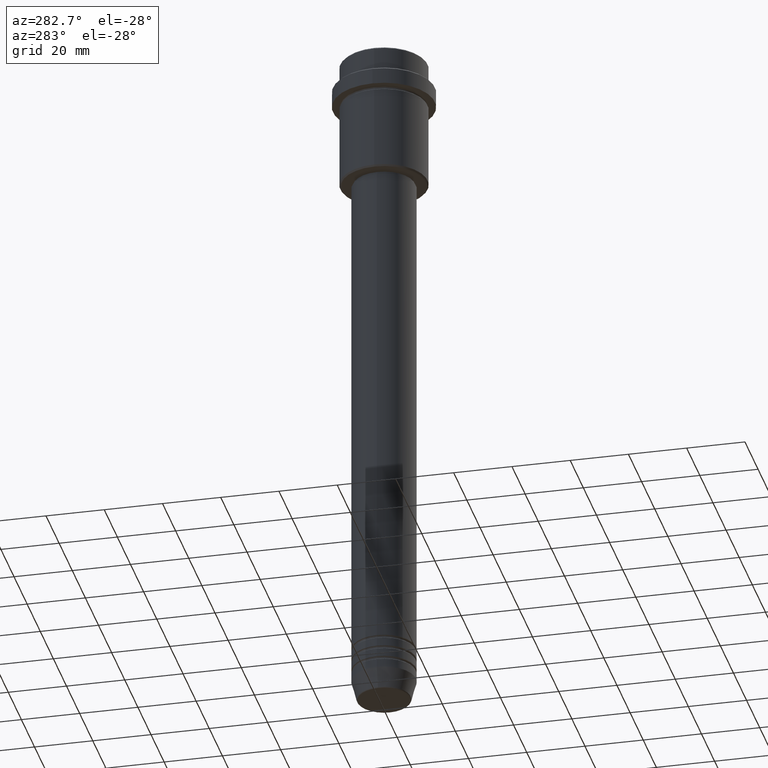
[diagram: clean part render]
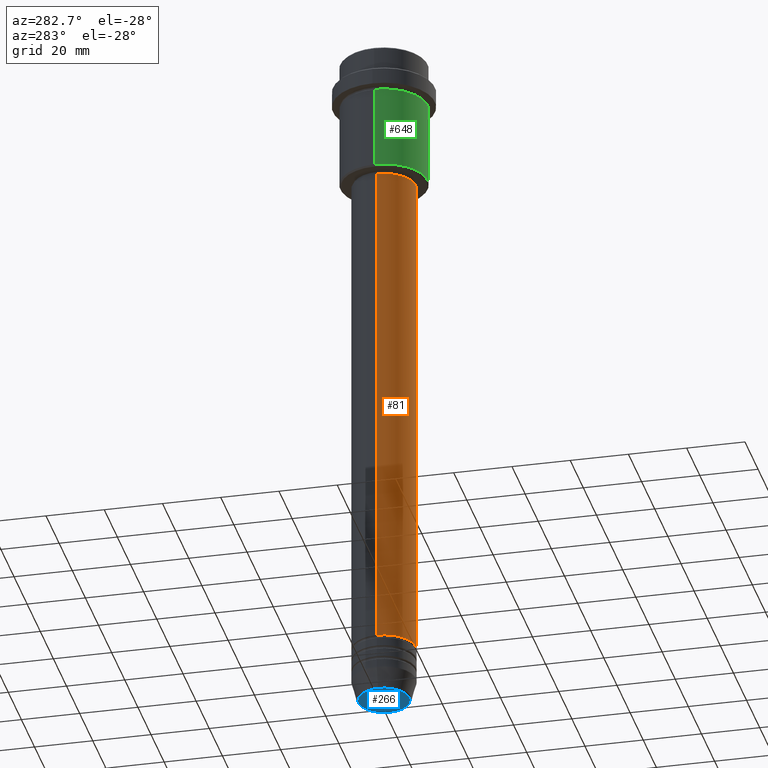
[diagram: same view with three faces highlighted in distinct colors, each labeled with its STEP entity id]
A machine part, auxiliary view with three faces highlighted in distinct colors.
Their STEP definitions:

[orange] entity #81 — the highlighted cylindrical surface (edge-blend (fillet) strip) has radius 11 mm, axis along (-0, -0, 1).
#11 = CARTESIAN_POINT ( 'NONE',  ( 11.00000000000000000, 0.000000000000000000, 0.000000000000000000 ) ) ;
#12 = DIRECTION ( 'NONE',  ( -0.000000000000000000, -0.000000000000000000, 1.000000000000000000 ) ) ;
#81 = ADVANCED_FACE ( 'NONE', ( #562 ), #137, .T. ) ;
#86 = CIRCLE ( 'NONE', #362, 11.00000000000000000 ) ;
#105 = CARTESIAN_POINT ( 'NONE',  ( 0.000000000000000000, 0.000000000000000000, -220.9999999999999432 ) ) ;
#115 = CARTESIAN_POINT ( 'NONE',  ( -11.00000000000000000, 1.347111479062088405E-15, -220.9999999999999432 ) ) ;
#137 = CYLINDRICAL_SURFACE ( 'NONE', #195, 11.00000000000000000 ) ;
#143 = VERTEX_POINT ( 'NONE', #1322 ) ;
#188 = ORIENTED_EDGE ( 'NONE', *, *, #1262, .T. ) ;
#195 = AXIS2_PLACEMENT_3D ( 'NONE', #771, #12, #1115 ) ;
#287 = CIRCLE ( 'NONE', #709, 10.99999999999999822 ) ;
#310 = CARTESIAN_POINT ( 'NONE',  ( -11.00000000000000000, 1.347111479062088405E-15, 0.000000000000000000 ) ) ;
#340 = EDGE_CURVE ( 'NONE', #434, #1407, #952, .T. ) ;
#362 = AXIS2_PLACEMENT_3D ( 'NONE', #105, #544, #537 ) ;
#388 = DIRECTION ( 'NONE',  ( 1.000000000000000000, 0.000000000000000000, 0.000000000000000000 ) ) ;
#434 = VERTEX_POINT ( 'NONE', #115 ) ;
#445 = CARTESIAN_POINT ( 'NONE',  ( 11.00000000000000000, 0.000000000000000000, -220.9999999999999432 ) ) ;
#537 = DIRECTION ( 'NONE',  ( 1.000000000000000000, 0.000000000000000000, 0.000000000000000000 ) ) ;
#544 = DIRECTION ( 'NONE',  ( -0.000000000000000000, -0.000000000000000000, 1.000000000000000000 ) ) ;
#562 = FACE_OUTER_BOUND ( 'NONE', #1260, .T. ) ;
#572 = VECTOR ( 'NONE', #944, 1000.000000000000000 ) ;
#603 = CARTESIAN_POINT ( 'NONE',  ( -10.99999999999999822, 1.347111479062088207E-15, -46.00000000000002132 ) ) ;
#604 = ORIENTED_EDGE ( 'NONE', *, *, #340, .F. ) ;
#606 = EDGE_CURVE ( 'NONE', #434, #939, #86, .T. ) ;
#709 = AXIS2_PLACEMENT_3D ( 'NONE', #1318, #1365, #388 ) ;
#771 = CARTESIAN_POINT ( 'NONE',  ( 0.000000000000000000, 0.000000000000000000, 0.000000000000000000 ) ) ;
#887 = VECTOR ( 'NONE', #1235, 1000.000000000000000 ) ;
#939 = VERTEX_POINT ( 'NONE', #445 ) ;
#944 = DIRECTION ( 'NONE',  ( -0.000000000000000000, -0.000000000000000000, 1.000000000000000000 ) ) ;
#952 = LINE ( 'NONE', #310, #572 ) ;
#986 = ORIENTED_EDGE ( 'NONE', *, *, #1378, .F. ) ;
#1005 = LINE ( 'NONE', #11, #887 ) ;
#1056 = ORIENTED_EDGE ( 'NONE', *, *, #606, .T. ) ;
#1115 = DIRECTION ( 'NONE',  ( 1.000000000000000000, 0.000000000000000000, 0.000000000000000000 ) ) ;
#1235 = DIRECTION ( 'NONE',  ( -0.000000000000000000, -0.000000000000000000, 1.000000000000000000 ) ) ;
#1260 = EDGE_LOOP ( 'NONE', ( #604, #1056, #188, #986 ) ) ;
#1262 = EDGE_CURVE ( 'NONE', #939, #143, #1005, .T. ) ;
#1318 = CARTESIAN_POINT ( 'NONE',  ( 0.000000000000000000, 0.000000000000000000, -46.00000000000002132 ) ) ;
#1322 = CARTESIAN_POINT ( 'NONE',  ( 10.99999999999999822, 0.000000000000000000, -46.00000000000002132 ) ) ;
#1365 = DIRECTION ( 'NONE',  ( -0.000000000000000000, -0.000000000000000000, 1.000000000000000000 ) ) ;
#1378 = EDGE_CURVE ( 'NONE', #1407, #143, #287, .T. ) ;
#1407 = VERTEX_POINT ( 'NONE', #603 ) ;

[blue] entity #266 — the highlighted planar face has unit normal (0, -0, 1).
#6 = EDGE_LOOP ( 'NONE', ( #507, #1069 ) ) ;
#69 = DIRECTION ( 'NONE',  ( 0.000000000000000000, 0.000000000000000000, -1.000000000000000000 ) ) ;
#75 = DIRECTION ( 'NONE',  ( 1.000000000000000000, 0.000000000000000000, 0.000000000000000000 ) ) ;
#144 = DIRECTION ( 'NONE',  ( 1.000000000000000000, 0.000000000000000000, 0.000000000000000000 ) ) ;
#158 = DIRECTION ( 'NONE',  ( 0.000000000000000000, -0.000000000000000000, 1.000000000000000000 ) ) ;
#203 = EDGE_CURVE ( 'NONE', #487, #1204, #410, .T. ) ;
#266 = ADVANCED_FACE ( 'NONE', ( #702 ), #1021, .F. ) ;
#309 = AXIS2_PLACEMENT_3D ( 'NONE', #1241, #158, #144 ) ;
#410 = CIRCLE ( 'NONE', #1387, 8.740692158992661831 ) ;
#473 = DIRECTION ( 'NONE',  ( 0.000000000000000000, 0.000000000000000000, -1.000000000000000000 ) ) ;
#487 = VERTEX_POINT ( 'NONE', #663 ) ;
#507 = ORIENTED_EDGE ( 'NONE', *, *, #1052, .T. ) ;
#663 = CARTESIAN_POINT ( 'NONE',  ( -8.740692158992661831, 1.099999016768740048E-15, -240.0000000000000568 ) ) ;
#689 = CIRCLE ( 'NONE', #1067, 8.740692158992661831 ) ;
#702 = FACE_OUTER_BOUND ( 'NONE', #6, .T. ) ;
#1021 = PLANE ( 'NONE',  #309 ) ;
#1052 = EDGE_CURVE ( 'NONE', #1204, #487, #689, .T. ) ;
#1055 = CARTESIAN_POINT ( 'NONE',  ( 0.000000000000000000, 0.000000000000000000, -240.0000000000000568 ) ) ;
#1067 = AXIS2_PLACEMENT_3D ( 'NONE', #1055, #69, #75 ) ;
#1069 = ORIENTED_EDGE ( 'NONE', *, *, #203, .T. ) ;
#1204 = VERTEX_POINT ( 'NONE', #1271 ) ;
#1241 = CARTESIAN_POINT ( 'NONE',  ( 0.000000000000000000, 0.000000000000000000, -240.0000000000000568 ) ) ;
#1271 = CARTESIAN_POINT ( 'NONE',  ( 8.740692158992661831, 0.000000000000000000, -240.0000000000000568 ) ) ;
#1350 = CARTESIAN_POINT ( 'NONE',  ( 0.000000000000000000, 0.000000000000000000, -240.0000000000000568 ) ) ;
#1354 = DIRECTION ( 'NONE',  ( 1.000000000000000000, 0.000000000000000000, 0.000000000000000000 ) ) ;
#1387 = AXIS2_PLACEMENT_3D ( 'NONE', #1350, #473, #1354 ) ;

[green] entity #648 — the highlighted cylindrical surface (partial cylindrical patch) has radius 15 mm, axis along (-0, -0, 1).
#123 = VERTEX_POINT ( 'NONE', #446 ) ;
#132 = AXIS2_PLACEMENT_3D ( 'NONE', #714, #395, #161 ) ;
#161 = DIRECTION ( 'NONE',  ( 1.000000000000000000, 0.000000000000000000, 0.000000000000000000 ) ) ;
#200 = ORIENTED_EDGE ( 'NONE', *, *, #918, .T. ) ;
#241 = AXIS2_PLACEMENT_3D ( 'NONE', #1164, #612, #1059 ) ;
#245 = DIRECTION ( 'NONE',  ( -0.000000000000000000, -0.000000000000000000, 1.000000000000000000 ) ) ;
#342 = CIRCLE ( 'NONE', #241, 15.00000000000000178 ) ;
#353 = DIRECTION ( 'NONE',  ( -1.000000000000000000, 0.000000000000000000, 0.000000000000000000 ) ) ;
#395 = DIRECTION ( 'NONE',  ( -0.000000000000000000, -0.000000000000000000, 1.000000000000000000 ) ) ;
#408 = FACE_OUTER_BOUND ( 'NONE', #586, .T. ) ;
#414 = CIRCLE ( 'NONE', #479, 15.00000000000000000 ) ;
#446 = CARTESIAN_POINT ( 'NONE',  ( 15.00000000000000000, 0.000000000000000000, -44.49999999999997868 ) ) ;
#462 = VERTEX_POINT ( 'NONE', #768 ) ;
#463 = CARTESIAN_POINT ( 'NONE',  ( -15.00000000000000355, 1.836970198721029983E-15, -16.00000000000000000 ) ) ;
#479 = AXIS2_PLACEMENT_3D ( 'NONE', #776, #245, #353 ) ;
#508 = CYLINDRICAL_SURFACE ( 'NONE', #132, 15.00000000000000000 ) ;
#532 = EDGE_CURVE ( 'NONE', #123, #462, #678, .T. ) ;
#546 = VERTEX_POINT ( 'NONE', #463 ) ;
#549 = LINE ( 'NONE', #1196, #885 ) ;
#586 = EDGE_LOOP ( 'NONE', ( #1167, #200, #1148, #1237 ) ) ;
#612 = DIRECTION ( 'NONE',  ( -0.000000000000000000, -0.000000000000000000, 1.000000000000000000 ) ) ;
#648 = ADVANCED_FACE ( 'NONE', ( #408 ), #508, .T. ) ;
#678 = LINE ( 'NONE', #1010, #1086 ) ;
#714 = CARTESIAN_POINT ( 'NONE',  ( 0.000000000000000000, 0.000000000000000000, 0.000000000000000000 ) ) ;
#768 = CARTESIAN_POINT ( 'NONE',  ( 15.00000000000000178, 0.000000000000000000, -16.00000000000000000 ) ) ;
#776 = CARTESIAN_POINT ( 'NONE',  ( 0.000000000000000000, 0.000000000000000000, -44.49999999999997868 ) ) ;
#825 = CARTESIAN_POINT ( 'NONE',  ( -15.00000000000000000, 1.836970198721029589E-15, -44.49999999999997868 ) ) ;
#884 = EDGE_CURVE ( 'NONE', #1192, #546, #549, .T. ) ;
#885 = VECTOR ( 'NONE', #988, 1000.000000000000000 ) ;
#918 = EDGE_CURVE ( 'NONE', #1192, #123, #414, .T. ) ;
#988 = DIRECTION ( 'NONE',  ( -0.000000000000000000, -0.000000000000000000, 1.000000000000000000 ) ) ;
#1010 = CARTESIAN_POINT ( 'NONE',  ( 15.00000000000000000, 0.000000000000000000, 0.000000000000000000 ) ) ;
#1059 = DIRECTION ( 'NONE',  ( 1.000000000000000000, 0.000000000000000000, 0.000000000000000000 ) ) ;
#1086 = VECTOR ( 'NONE', #1105, 1000.000000000000000 ) ;
#1105 = DIRECTION ( 'NONE',  ( -0.000000000000000000, -0.000000000000000000, 1.000000000000000000 ) ) ;
#1112 = EDGE_CURVE ( 'NONE', #546, #462, #342, .T. ) ;
#1148 = ORIENTED_EDGE ( 'NONE', *, *, #532, .T. ) ;
#1164 = CARTESIAN_POINT ( 'NONE',  ( 0.000000000000000000, 0.000000000000000000, -16.00000000000000000 ) ) ;
#1167 = ORIENTED_EDGE ( 'NONE', *, *, #884, .F. ) ;
#1192 = VERTEX_POINT ( 'NONE', #825 ) ;
#1196 = CARTESIAN_POINT ( 'NONE',  ( -15.00000000000000000, 1.836970198721029589E-15, 0.000000000000000000 ) ) ;
#1237 = ORIENTED_EDGE ( 'NONE', *, *, #1112, .F. ) ;